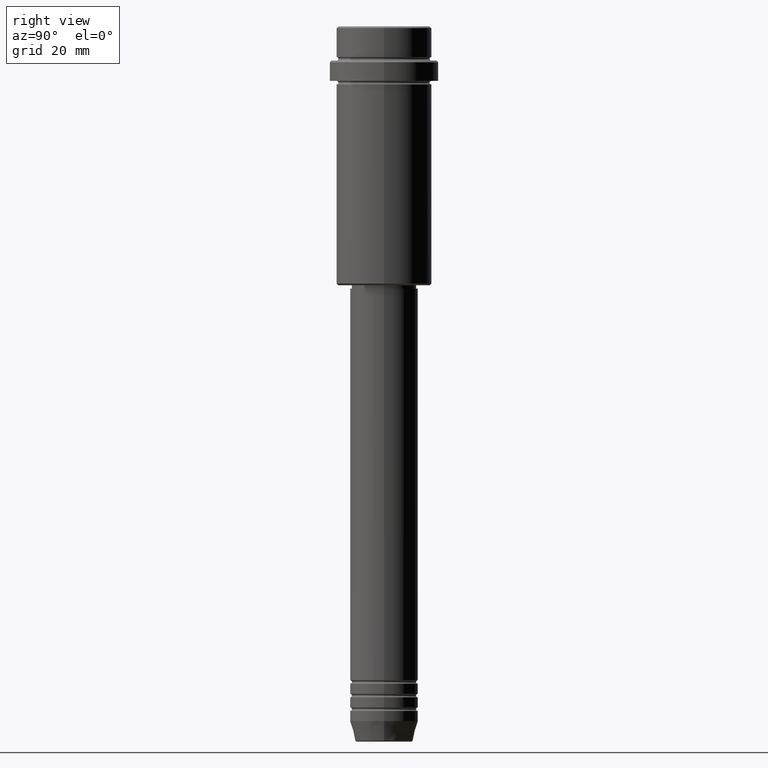
[diagram: clean part render]
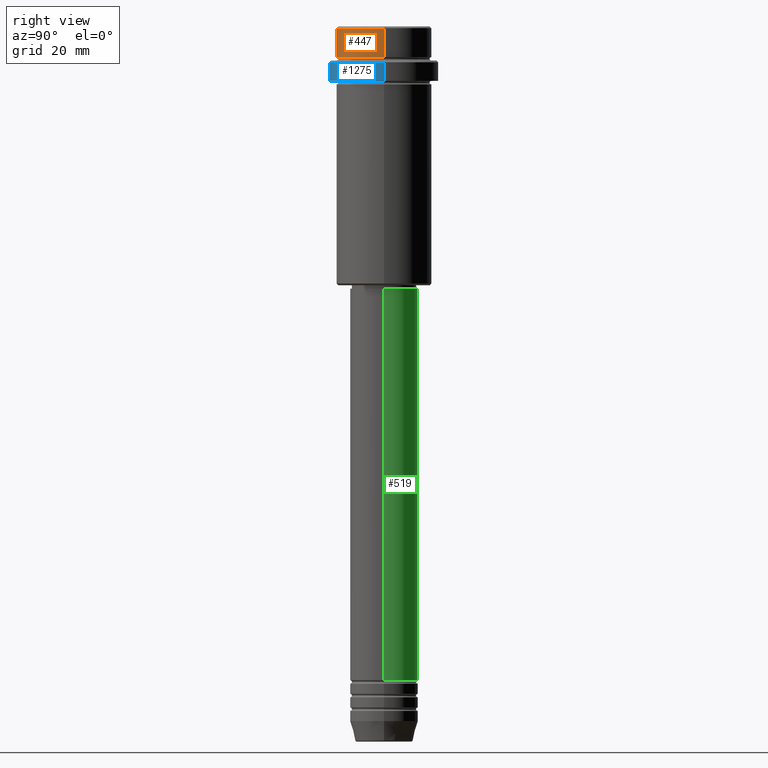
[diagram: same view with three faces highlighted in distinct colors, each labeled with its STEP entity id]
A machine part, right view with three faces highlighted in distinct colors.
Their STEP definitions:

[orange] entity #447 — the highlighted cylindrical surface (partial cylindrical patch) has radius 14 mm, axis along (-0, -0, 1).
#29 = CIRCLE ( 'NONE', #1109, 13.99999999999997158 ) ;
#89 = EDGE_CURVE ( 'NONE', #210, #599, #604, .T. ) ;
#142 = DIRECTION ( 'NONE',  ( -0.000000000000000000, -0.000000000000000000, 1.000000000000000000 ) ) ;
#210 = VERTEX_POINT ( 'NONE', #1115 ) ;
#220 = EDGE_CURVE ( 'NONE', #210, #423, #29, .T. ) ;
#228 = LINE ( 'NONE', #1118, #781 ) ;
#292 = CIRCLE ( 'NONE', #1333, 13.99999999999998401 ) ;
#296 = EDGE_CURVE ( 'NONE', #423, #697, #228, .T. ) ;
#303 = CARTESIAN_POINT ( 'NONE',  ( 0.000000000000000000, 0.000000000000000000, -8.999999999999998224 ) ) ;
#415 = ORIENTED_EDGE ( 'NONE', *, *, #296, .T. ) ;
#423 = VERTEX_POINT ( 'NONE', #1014 ) ;
#447 = ADVANCED_FACE ( 'NONE', ( #1237 ), #459, .T. ) ;
#459 = CYLINDRICAL_SURFACE ( 'NONE', #487, 13.99999999999998401 ) ;
#483 = VECTOR ( 'NONE', #1068, 1000.000000000000000 ) ;
#487 = AXIS2_PLACEMENT_3D ( 'NONE', #690, #142, #799 ) ;
#548 = CARTESIAN_POINT ( 'NONE',  ( 0.000000000000000000, 0.000000000000000000, -0.4999999999999917843 ) ) ;
#563 = CARTESIAN_POINT ( 'NONE',  ( -13.99999999999998401, 1.714505518806292666E-15, -0.4999999999999917843 ) ) ;
#575 = DIRECTION ( 'NONE',  ( -0.000000000000000000, -0.000000000000000000, 1.000000000000000000 ) ) ;
#599 = VERTEX_POINT ( 'NONE', #563 ) ;
#604 = LINE ( 'NONE', #939, #483 ) ;
#631 = ORIENTED_EDGE ( 'NONE', *, *, #220, .T. ) ;
#636 = CARTESIAN_POINT ( 'NONE',  ( 13.99999999999998401, 0.000000000000000000, -0.4999999999999917843 ) ) ;
#690 = CARTESIAN_POINT ( 'NONE',  ( 0.000000000000000000, 0.000000000000000000, 0.000000000000000000 ) ) ;
#697 = VERTEX_POINT ( 'NONE', #636 ) ;
#781 = VECTOR ( 'NONE', #890, 1000.000000000000000 ) ;
#799 = DIRECTION ( 'NONE',  ( 1.000000000000000000, 0.000000000000000000, 0.000000000000000000 ) ) ;
#832 = EDGE_LOOP ( 'NONE', ( #940, #631, #415, #1362 ) ) ;
#890 = DIRECTION ( 'NONE',  ( -0.000000000000000000, -0.000000000000000000, 1.000000000000000000 ) ) ;
#939 = CARTESIAN_POINT ( 'NONE',  ( -13.99999999999998401, 1.714505518806292666E-15, 0.000000000000000000 ) ) ;
#940 = ORIENTED_EDGE ( 'NONE', *, *, #89, .F. ) ;
#984 = DIRECTION ( 'NONE',  ( 1.000000000000000000, 0.000000000000000000, 0.000000000000000000 ) ) ;
#1014 = CARTESIAN_POINT ( 'NONE',  ( 13.99999999999997158, 0.000000000000000000, -8.999999999999998224 ) ) ;
#1068 = DIRECTION ( 'NONE',  ( -0.000000000000000000, -0.000000000000000000, 1.000000000000000000 ) ) ;
#1109 = AXIS2_PLACEMENT_3D ( 'NONE', #303, #575, #1228 ) ;
#1115 = CARTESIAN_POINT ( 'NONE',  ( -13.99999999999997158, 1.714505518806291877E-15, -8.999999999999998224 ) ) ;
#1118 = CARTESIAN_POINT ( 'NONE',  ( 13.99999999999998401, 0.000000000000000000, 0.000000000000000000 ) ) ;
#1186 = EDGE_CURVE ( 'NONE', #697, #599, #292, .T. ) ;
#1228 = DIRECTION ( 'NONE',  ( 1.000000000000000000, 0.000000000000000000, 0.000000000000000000 ) ) ;
#1237 = FACE_OUTER_BOUND ( 'NONE', #832, .T. ) ;
#1321 = DIRECTION ( 'NONE',  ( 0.000000000000000000, 0.000000000000000000, -1.000000000000000000 ) ) ;
#1333 = AXIS2_PLACEMENT_3D ( 'NONE', #548, #1321, #984 ) ;
#1362 = ORIENTED_EDGE ( 'NONE', *, *, #1186, .T. ) ;

[blue] entity #1275 — the highlighted cylindrical surface (partial cylindrical patch) has radius 16 mm, axis along (-0, -0, 1).
#41 = DIRECTION ( 'NONE',  ( -0.000000000000000000, -0.000000000000000000, 1.000000000000000000 ) ) ;
#55 = VERTEX_POINT ( 'NONE', #654 ) ;
#59 = EDGE_CURVE ( 'NONE', #1169, #1079, #1057, .T. ) ;
#133 = AXIS2_PLACEMENT_3D ( 'NONE', #916, #158, #274 ) ;
#158 = DIRECTION ( 'NONE',  ( 0.000000000000000000, 0.000000000000000000, -1.000000000000000000 ) ) ;
#248 = CARTESIAN_POINT ( 'NONE',  ( 15.99999999999997335, 0.000000000000000000, -16.00000000000000000 ) ) ;
#273 = VECTOR ( 'NONE', #774, 1000.000000000000000 ) ;
#274 = DIRECTION ( 'NONE',  ( 1.000000000000000000, 0.000000000000000000, 0.000000000000000000 ) ) ;
#300 = DIRECTION ( 'NONE',  ( 1.000000000000000000, 0.000000000000000000, 0.000000000000000000 ) ) ;
#327 = LINE ( 'NONE', #905, #273 ) ;
#356 = CYLINDRICAL_SURFACE ( 'NONE', #436, 15.99999999999997335 ) ;
#379 = VERTEX_POINT ( 'NONE', #1312 ) ;
#406 = CARTESIAN_POINT ( 'NONE',  ( 0.000000000000000000, 0.000000000000000000, -16.00000000000000000 ) ) ;
#436 = AXIS2_PLACEMENT_3D ( 'NONE', #1366, #41, #591 ) ;
#591 = DIRECTION ( 'NONE',  ( 1.000000000000000000, 0.000000000000000000, 0.000000000000000000 ) ) ;
#592 = ORIENTED_EDGE ( 'NONE', *, *, #1184, .T. ) ;
#615 = FACE_OUTER_BOUND ( 'NONE', #1088, .T. ) ;
#639 = ORIENTED_EDGE ( 'NONE', *, *, #1045, .F. ) ;
#654 = CARTESIAN_POINT ( 'NONE',  ( 15.99999999999997335, 0.000000000000000000, -10.50000000000001243 ) ) ;
#674 = LINE ( 'NONE', #1132, #739 ) ;
#739 = VECTOR ( 'NONE', #889, 1000.000000000000000 ) ;
#774 = DIRECTION ( 'NONE',  ( -0.000000000000000000, -0.000000000000000000, 1.000000000000000000 ) ) ;
#889 = DIRECTION ( 'NONE',  ( -0.000000000000000000, -0.000000000000000000, 1.000000000000000000 ) ) ;
#899 = CARTESIAN_POINT ( 'NONE',  ( -15.99999999999997335, 1.959434878635761976E-15, -16.00000000000000000 ) ) ;
#905 = CARTESIAN_POINT ( 'NONE',  ( -15.99999999999997335, 1.959434878635761976E-15, 0.000000000000000000 ) ) ;
#916 = CARTESIAN_POINT ( 'NONE',  ( 0.000000000000000000, 0.000000000000000000, -10.50000000000001243 ) ) ;
#944 = CIRCLE ( 'NONE', #133, 15.99999999999997335 ) ;
#1035 = ORIENTED_EDGE ( 'NONE', *, *, #1291, .T. ) ;
#1045 = EDGE_CURVE ( 'NONE', #1169, #379, #327, .T. ) ;
#1057 = CIRCLE ( 'NONE', #1349, 15.99999999999997335 ) ;
#1079 = VERTEX_POINT ( 'NONE', #248 ) ;
#1088 = EDGE_LOOP ( 'NONE', ( #639, #1416, #592, #1035 ) ) ;
#1132 = CARTESIAN_POINT ( 'NONE',  ( 15.99999999999997335, 0.000000000000000000, 0.000000000000000000 ) ) ;
#1169 = VERTEX_POINT ( 'NONE', #899 ) ;
#1184 = EDGE_CURVE ( 'NONE', #1079, #55, #674, .T. ) ;
#1275 = ADVANCED_FACE ( 'NONE', ( #615 ), #356, .T. ) ;
#1291 = EDGE_CURVE ( 'NONE', #55, #379, #944, .T. ) ;
#1298 = DIRECTION ( 'NONE',  ( -0.000000000000000000, -0.000000000000000000, 1.000000000000000000 ) ) ;
#1312 = CARTESIAN_POINT ( 'NONE',  ( -15.99999999999997335, 1.959434878635761976E-15, -10.50000000000001243 ) ) ;
#1349 = AXIS2_PLACEMENT_3D ( 'NONE', #406, #1298, #300 ) ;
#1366 = CARTESIAN_POINT ( 'NONE',  ( 0.000000000000000000, 0.000000000000000000, 0.000000000000000000 ) ) ;
#1416 = ORIENTED_EDGE ( 'NONE', *, *, #59, .T. ) ;

[green] entity #519 — the highlighted cylindrical surface (edge-blend (fillet) strip) has radius 10 mm, axis along (-0, -0, 1).
#32 = CARTESIAN_POINT ( 'NONE',  ( -10.00000000000000000, 1.224646799147353256E-15, -191.9999999999999147 ) ) ;
#110 = CARTESIAN_POINT ( 'NONE',  ( 0.000000000000000000, 0.000000000000000000, 0.000000000000000000 ) ) ;
#135 = DIRECTION ( 'NONE',  ( 1.000000000000000000, 0.000000000000000000, 0.000000000000000000 ) ) ;
#145 = CARTESIAN_POINT ( 'NONE',  ( 0.000000000000000000, 0.000000000000000000, -191.9999999999999147 ) ) ;
#177 = VECTOR ( 'NONE', #1123, 1000.000000000000000 ) ;
#200 = CIRCLE ( 'NONE', #1379, 10.00000000000000000 ) ;
#223 = CARTESIAN_POINT ( 'NONE',  ( 10.00000000000000178, 0.000000000000000000, 0.000000000000000000 ) ) ;
#347 = CARTESIAN_POINT ( 'NONE',  ( 10.00000000000000000, 0.000000000000000000, -191.9999999999999147 ) ) ;
#368 = ORIENTED_EDGE ( 'NONE', *, *, #640, .T. ) ;
#372 = ORIENTED_EDGE ( 'NONE', *, *, #840, .F. ) ;
#437 = EDGE_CURVE ( 'NONE', #766, #903, #647, .T. ) ;
#480 = CARTESIAN_POINT ( 'NONE',  ( 0.000000000000000000, 0.000000000000000000, -77.00000000000000000 ) ) ;
#519 = ADVANCED_FACE ( 'NONE', ( #1102 ), #777, .T. ) ;
#553 = DIRECTION ( 'NONE',  ( -0.000000000000000000, -0.000000000000000000, 1.000000000000000000 ) ) ;
#597 = DIRECTION ( 'NONE',  ( 1.000000000000000000, 0.000000000000000000, 0.000000000000000000 ) ) ;
#614 = CARTESIAN_POINT ( 'NONE',  ( -10.00000000000000178, 1.224646799147353454E-15, 0.000000000000000000 ) ) ;
#618 = VERTEX_POINT ( 'NONE', #347 ) ;
#640 = EDGE_CURVE ( 'NONE', #618, #794, #200, .T. ) ;
#647 = CIRCLE ( 'NONE', #917, 10.00000000000000178 ) ;
#661 = LINE ( 'NONE', #223, #177 ) ;
#700 = CARTESIAN_POINT ( 'NONE',  ( -10.00000000000000178, 1.224646799147353454E-15, -77.00000000000000000 ) ) ;
#731 = EDGE_LOOP ( 'NONE', ( #368, #951, #1263, #372 ) ) ;
#758 = VECTOR ( 'NONE', #816, 1000.000000000000000 ) ;
#763 = DIRECTION ( 'NONE',  ( 1.000000000000000000, 0.000000000000000000, 0.000000000000000000 ) ) ;
#766 = VERTEX_POINT ( 'NONE', #1260 ) ;
#777 = CYLINDRICAL_SURFACE ( 'NONE', #1179, 10.00000000000000178 ) ;
#794 = VERTEX_POINT ( 'NONE', #32 ) ;
#816 = DIRECTION ( 'NONE',  ( -0.000000000000000000, -0.000000000000000000, 1.000000000000000000 ) ) ;
#830 = DIRECTION ( 'NONE',  ( -0.000000000000000000, -0.000000000000000000, 1.000000000000000000 ) ) ;
#840 = EDGE_CURVE ( 'NONE', #618, #766, #661, .T. ) ;
#885 = EDGE_CURVE ( 'NONE', #794, #903, #1254, .T. ) ;
#903 = VERTEX_POINT ( 'NONE', #700 ) ;
#917 = AXIS2_PLACEMENT_3D ( 'NONE', #480, #1332, #135 ) ;
#951 = ORIENTED_EDGE ( 'NONE', *, *, #885, .T. ) ;
#1102 = FACE_OUTER_BOUND ( 'NONE', #731, .T. ) ;
#1123 = DIRECTION ( 'NONE',  ( -0.000000000000000000, -0.000000000000000000, 1.000000000000000000 ) ) ;
#1179 = AXIS2_PLACEMENT_3D ( 'NONE', #110, #553, #763 ) ;
#1254 = LINE ( 'NONE', #614, #758 ) ;
#1260 = CARTESIAN_POINT ( 'NONE',  ( 10.00000000000000178, 0.000000000000000000, -77.00000000000000000 ) ) ;
#1263 = ORIENTED_EDGE ( 'NONE', *, *, #437, .F. ) ;
#1332 = DIRECTION ( 'NONE',  ( -0.000000000000000000, -0.000000000000000000, 1.000000000000000000 ) ) ;
#1379 = AXIS2_PLACEMENT_3D ( 'NONE', #145, #830, #597 ) ;